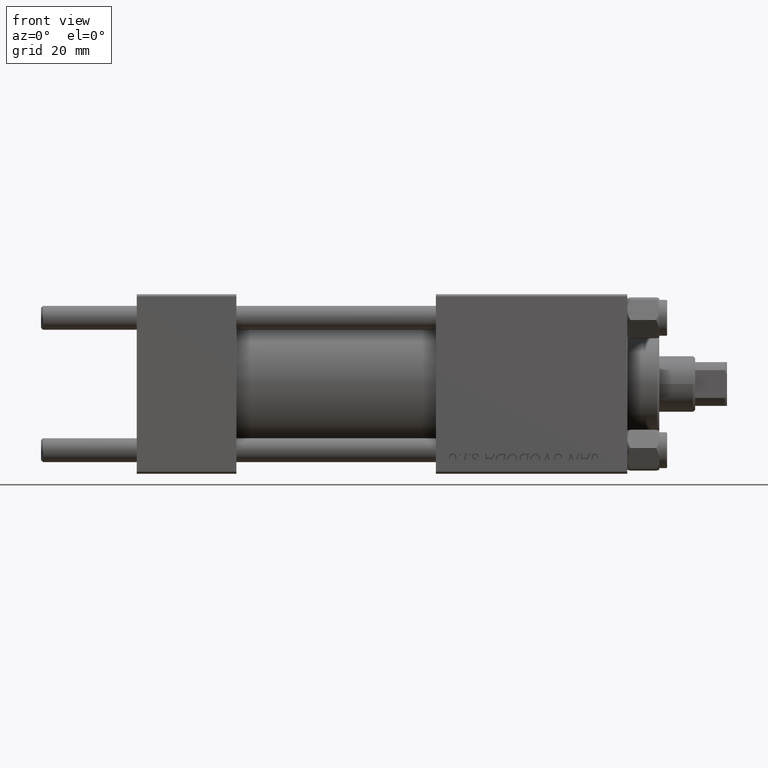
[diagram: clean part render]
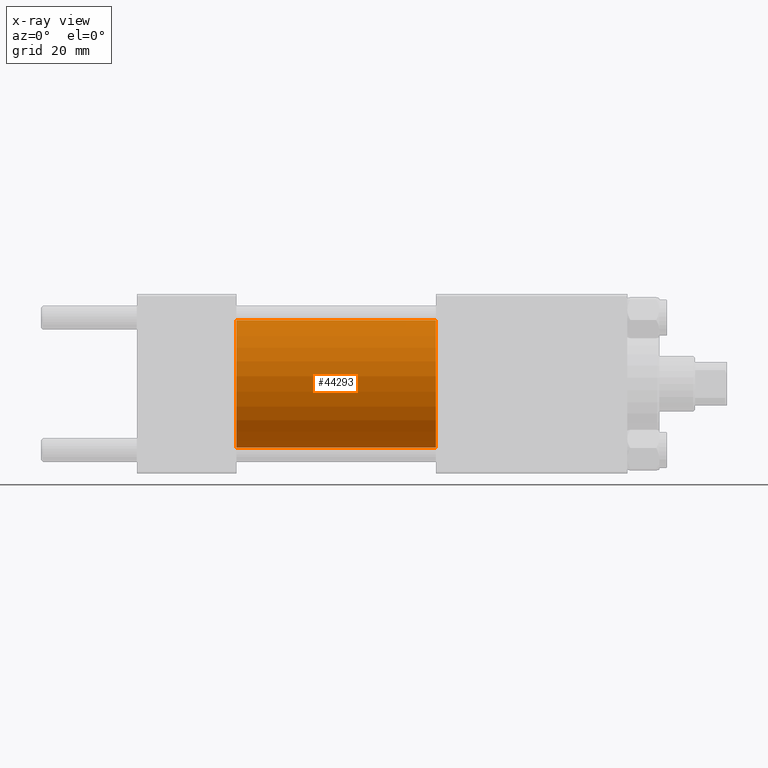
[diagram: x-ray — body ghosted, one internal face saturated and labeled with its STEP entity id]
A machine part, front view, then the same camera in x-ray: the body is ghosted and one INTERNAL B-rep face — a face not visible from any outside direction — is saturated and labeled: STEP entity #44293.
In plain terms, the highlighted cylindrical surface (partial cylindrical patch) has radius 16 mm, axis along (-1, -0, -0).
Its self-contained STEP definition (entity closure, byte-faithful):
#1648 = LINE ( 'NONE', #41117, #24680 ) ;
#2018 = AXIS2_PLACEMENT_3D ( 'NONE', #12526, #32031, #47452 ) ;
#5206 = CYLINDRICAL_SURFACE ( 'NONE', #48033, 16.00000000000000000 ) ;
#6409 = DIRECTION ( 'NONE',  ( -1.000000000000000000, -0.000000000000000000, -0.000000000000000000 ) ) ;
#8276 = VERTEX_POINT ( 'NONE', #12134 ) ;
#9262 = FACE_OUTER_BOUND ( 'NONE', #43470, .T. ) ;
#12134 = CARTESIAN_POINT ( 'NONE',  ( 75.00000000000001421, 0.000000000000000000, 16.00000000000000000 ) ) ;
#12526 = CARTESIAN_POINT ( 'NONE',  ( 25.00000000000000000, 0.000000000000000000, 0.000000000000000000 ) ) ;
#12666 = ORIENTED_EDGE ( 'NONE', *, *, #37415, .F. ) ;
#13975 = VERTEX_POINT ( 'NONE', #23448 ) ;
#14435 = EDGE_CURVE ( 'NONE', #8276, #13975, #29974, .T. ) ;
#18282 = CARTESIAN_POINT ( 'NONE',  ( 75.00000000000001421, 0.000000000000000000, 16.00000000000000000 ) ) ;
#23448 = CARTESIAN_POINT ( 'NONE',  ( 75.00000000000001421, 1.959434878635765131E-15, -16.00000000000000000 ) ) ;
#23890 = CARTESIAN_POINT ( 'NONE',  ( 75.00000000000001421, 0.000000000000000000, 0.000000000000000000 ) ) ;
#24680 = VECTOR ( 'NONE', #32277, 1000.000000000000000 ) ;
#28285 = ORIENTED_EDGE ( 'NONE', *, *, #46515, .F. ) ;
#29969 = DIRECTION ( 'NONE',  ( 0.000000000000000000, 0.000000000000000000, 1.000000000000000000 ) ) ;
#29974 = CIRCLE ( 'NONE', #42050, 16.00000000000000000 ) ;
#30297 = CARTESIAN_POINT ( 'NONE',  ( 25.00000000000000000, 0.000000000000000000, 16.00000000000000000 ) ) ;
#31719 = ORIENTED_EDGE ( 'NONE', *, *, #47659, .T. ) ;
#32031 = DIRECTION ( 'NONE',  ( 1.000000000000000000, 0.000000000000000000, 0.000000000000000000 ) ) ;
#32277 = DIRECTION ( 'NONE',  ( -1.000000000000000000, -0.000000000000000000, -0.000000000000000000 ) ) ;
#33418 = VERTEX_POINT ( 'NONE', #30297 ) ;
#33746 = DIRECTION ( 'NONE',  ( -1.000000000000000000, -0.000000000000000000, -0.000000000000000000 ) ) ;
#37278 = LINE ( 'NONE', #18282, #44574 ) ;
#37415 = EDGE_CURVE ( 'NONE', #8276, #33418, #37278, .T. ) ;
#38396 = CIRCLE ( 'NONE', #2018, 16.00000000000000000 ) ;
#39308 = DIRECTION ( 'NONE',  ( 0.000000000000000000, 0.000000000000000000, -1.000000000000000000 ) ) ;
#40493 = VERTEX_POINT ( 'NONE', #47258 ) ;
#41117 = CARTESIAN_POINT ( 'NONE',  ( 75.00000000000001421, 1.959434878635765131E-15, -16.00000000000000000 ) ) ;
#41591 = CARTESIAN_POINT ( 'NONE',  ( 75.00000000000001421, 0.000000000000000000, 0.000000000000000000 ) ) ;
#42050 = AXIS2_PLACEMENT_3D ( 'NONE', #23890, #46647, #39308 ) ;
#43470 = EDGE_LOOP ( 'NONE', ( #46494, #31719, #28285, #12666 ) ) ;
#44293 = ADVANCED_FACE ( 'NONE', ( #9262 ), #5206, .F. ) ;
#44574 = VECTOR ( 'NONE', #33746, 1000.000000000000000 ) ;
#46494 = ORIENTED_EDGE ( 'NONE', *, *, #14435, .T. ) ;
#46515 = EDGE_CURVE ( 'NONE', #33418, #40493, #38396, .T. ) ;
#46647 = DIRECTION ( 'NONE',  ( 1.000000000000000000, 0.000000000000000000, 0.000000000000000000 ) ) ;
#47258 = CARTESIAN_POINT ( 'NONE',  ( 25.00000000000000000, 1.959434878635765131E-15, -16.00000000000000000 ) ) ;
#47452 = DIRECTION ( 'NONE',  ( 0.000000000000000000, 0.000000000000000000, -1.000000000000000000 ) ) ;
#47659 = EDGE_CURVE ( 'NONE', #13975, #40493, #1648, .T. ) ;
#48033 = AXIS2_PLACEMENT_3D ( 'NONE', #41591, #6409, #29969 ) ;